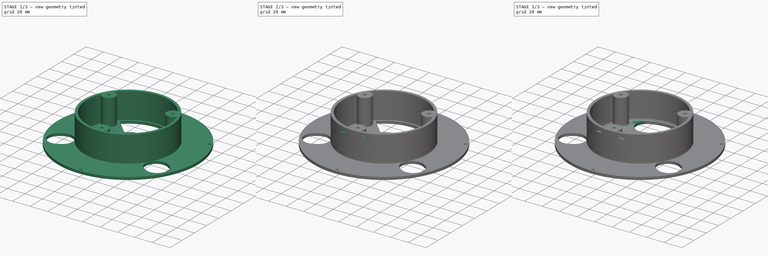
[diagram: build sequence overview — one tinted view per stage of 3, left to right]
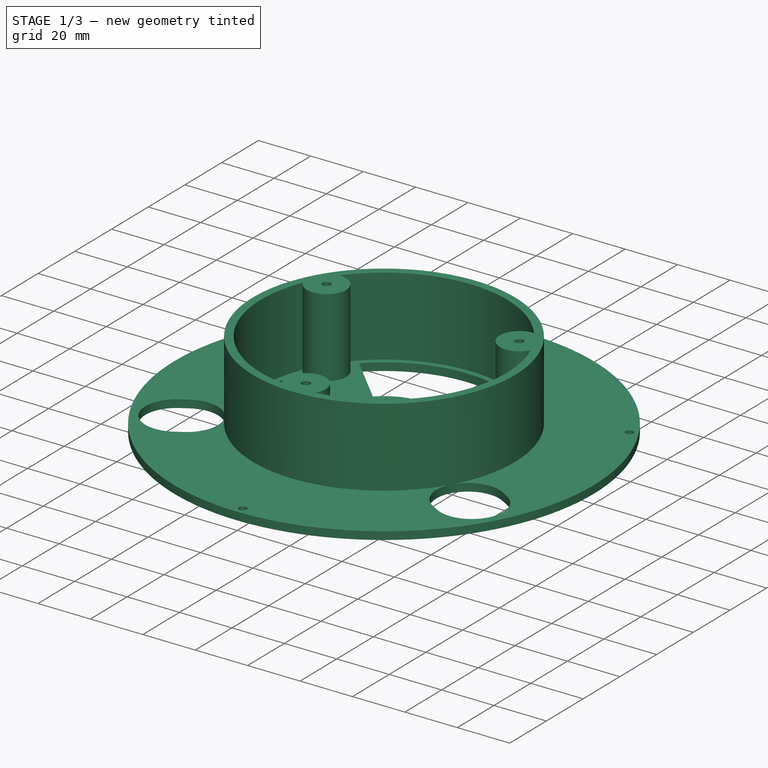
[diagram: stage 1 of 3 — iso view after this stage's code; geometry added in this stage tinted green]
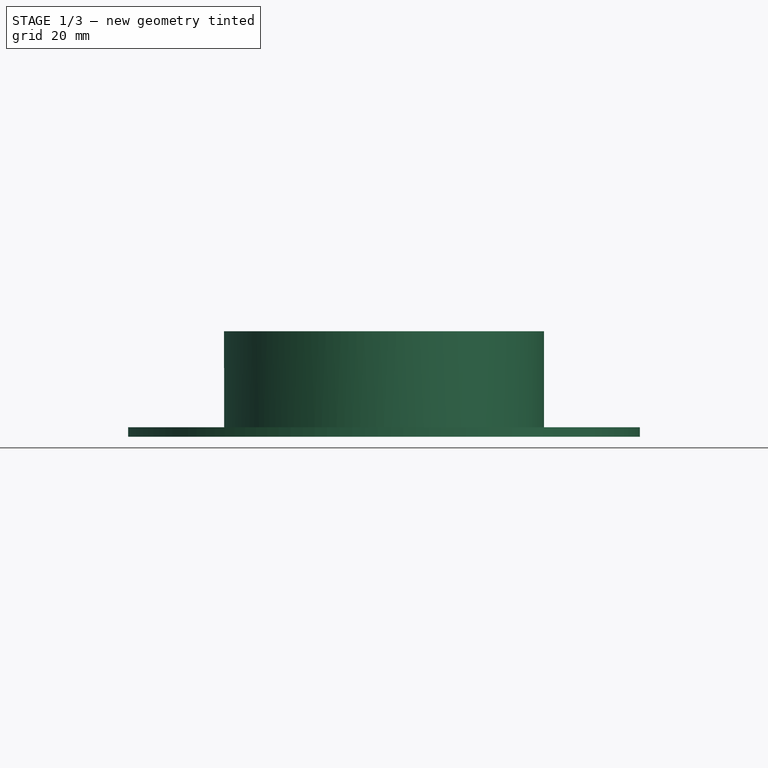
[diagram: stage 1 of 3 — front view after this stage's code; geometry added in this stage tinted green]
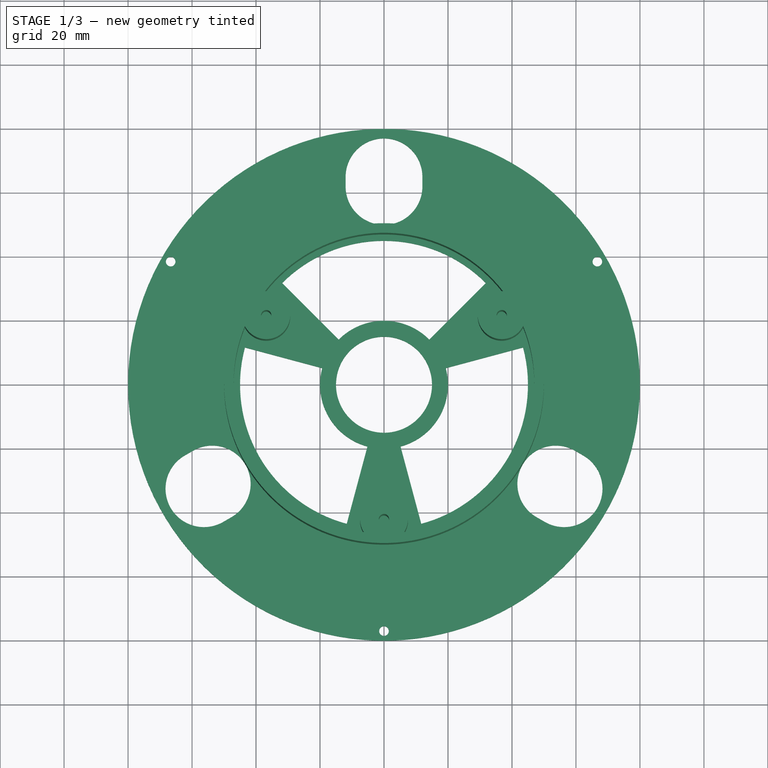
[diagram: stage 1 of 3 — top view after this stage's code; geometry added in this stage tinted green]
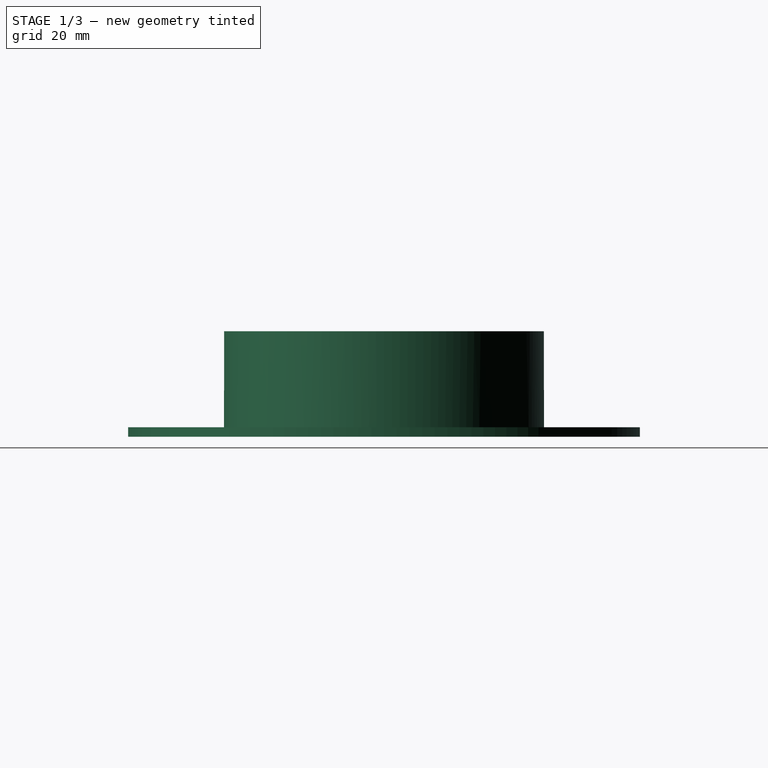
[diagram: stage 1 of 3 — right view after this stage's code; geometry added in this stage tinted green]
FCSTD DOCUMENT  (FreeCAD 0.18R15441 (Git))
Label: MiniSpoolHalf2_Thick_30MM
License: All rights reserved
LicenseURL: http://en.wikipedia.org/wiki/All_rights_reserved
objects: Sketcher::SketchObject×4, PartDesign::Pad×2, PartDesign::Pocket×2, PartDesign::Fillet×2, PartDesign::Body×1, App::Part×1
note: 15 computed .brp shape members not serialized (recipe doc carries the construction recipe); baked Part::Feature solids carry a one-line shape summary decoded from their .brp

FEATURE [Sketcher::SketchObject] Sketch001  label="SpoolCoreSketch"
  MapMode = 5
  Support = -> [XY_Plane001]
  sketch-geometry (20):
    g0: Circle CenterX=0 CenterY=0 CenterZ=0 NormalX=0 NormalY=0 NormalZ=1 AngleXU=0 Radius=50
    g1: LineSegment [constr] StartX=-40.7032 StartY=23.5 StartZ=0 EndX=-7.1e-15 EndY=-47 EndZ=0
    g2: LineSegment [constr] StartX=0 StartY=-47 StartZ=0 EndX=40.7032 EndY=23.5 EndZ=0
    g3: LineSegment [constr] StartX=40.7032 StartY=23.5 StartZ=0 EndX=-40.7032 EndY=23.5 EndZ=0
    g4: Circle [constr] CenterX=0 CenterY=0 CenterZ=0 NormalX=0 NormalY=0 NormalZ=1 AngleXU=0 Radius=47
    g5: LineSegment [constr] StartX=0 StartY=0 StartZ=0 EndX=-40.7032 EndY=23.5 EndZ=0
    g6: LineSegment [constr] StartX=0 StartY=0 StartZ=0 EndX=40.7032 EndY=23.5 EndZ=0
    g7: LineSegment [constr] StartX=0 StartY=0 StartZ=0 EndX=0 EndY=-47 EndZ=0
    g8: Circle [constr] CenterX=-36.8061 CenterY=21.25 CenterZ=0 NormalX=0 NormalY=0 NormalZ=1 AngleXU=0 Radius=7.5
    g9: Circle [constr] CenterX=36.8061 CenterY=21.25 CenterZ=0 NormalX=0 NormalY=0 NormalZ=1 AngleXU=0 Radius=7.5
    g10: Circle [constr] CenterX=0 CenterY=-42.5 CenterZ=0 NormalX=0 NormalY=0 NormalZ=1 AngleXU=0 Radius=7.5
    g11: ArcOfCircle CenterX=0 CenterY=0 CenterZ=0 NormalX=0 NormalY=0 NormalZ=1 AngleXU=0 Radius=47 StartAngle=2.75234 EndAngle=4.57804
    g12: ArcOfCircle CenterX=0 CenterY=0 CenterZ=0 NormalX=0 NormalY=0 NormalZ=1 AngleXU=0 Radius=47 StartAngle=4.84674 EndAngle=6.67244
    g13: ArcOfCircle CenterX=0 CenterY=0 CenterZ=0 NormalX=0 NormalY=0 NormalZ=1 AngleXU=0 Radius=47 StartAngle=0.657948 EndAngle=2.48364
    g14: ArcOfCircle CenterX=-36.8061 CenterY=21.25 CenterZ=0 NormalX=0 NormalY=0 NormalZ=1 AngleXU=0 Radius=7.5 StartAngle=3.61415 EndAngle=7.90502
    g15: ArcOfCircle CenterX=36.8061 CenterY=21.25 CenterZ=0 NormalX=0 NormalY=0 NormalZ=1 AngleXU=0 Radius=7.5 StartAngle=1.51976 EndAngle=5.81062
    g16: ArcOfCircle CenterX=0 CenterY=-42.5 CenterZ=0 NormalX=0 NormalY=0 NormalZ=1 AngleXU=0 Radius=7.5 StartAngle=5.70855 EndAngle=9.99941
    g17: Circle CenterX=-36.8061 CenterY=21.25 CenterZ=0 NormalX=0 NormalY=0 NormalZ=1 AngleXU=0 Radius=1.6
    g18: Circle CenterX=36.8061 CenterY=21.25 CenterZ=0 NormalX=0 NormalY=0 NormalZ=1 AngleXU=0 Radius=1.6
    g19: Circle CenterX=0 CenterY=-42.5 CenterZ=0 NormalX=0 NormalY=0 NormalZ=1 AngleXU=0 Radius=1.6
  constraints (52):
    c: Coincident(g0,g-1)
    c: Radius(g0) = 50
    c: Coincident(g1,g2)
    c: Coincident(g2,g3)
    c: Coincident(g3,g1)
    c: Equal(g1,g2)
    c: Equal(g1,g3)
    c: PointOnObject(g1,g4)
    c: PointOnObject(g2,g4)
    c: PointOnObject(g3,g4)
    c: Coincident(g4,g0)
    c: PointOnObject(g1,g-2)
    c: Radius(g4) = 47
    c: Coincident(g5,g0)
    c: Coincident(g5,g1)
    c: Coincident(g6,g0)
    c: Coincident(g6,g2)
    c: Coincident(g7,g0)
    c: Coincident(g7,g1)
    c: PointOnObject(g8,g5)
    c: PointOnObject(g9,g6)
    c: PointOnObject(g10,g7)
    c: Equal(g8,g9)
    c: Equal(g9,g10)
    c: Tangent(g8,g0)
    c: Tangent(g9,g0)
    c: Tangent(g10,g0)
    c: Radius(g8) = 7.5
    c: Coincident(g11,g0)
    c: PointOnObject(g11,g8)
    c: PointOnObject(g11,g10)
    c: Coincident(g12,g0)
    c: PointOnObject(g12,g9)
    c: Coincident(g13,g0)
    c: Coincident(g14,g8)
    c: Coincident(g14,g11)
    c: Coincident(g14,g13)
    c: Coincident(g15,g9)
    c: Coincident(g15,g13)
    c: Coincident(g15,g12)
    c: Equal(g13,g4)
    c: Coincident(g16,g10)
    c: Coincident(g16,g11)
    c: Coincident(g16,g12)
    c: Equal(g12,g4)
    c: Equal(g11,g4)
    c: Coincident(g17,g14)
    c: Coincident(g18,g15)
    c: Coincident(g19,g16)
    c: Equal(g17,g18)
    c: Equal(g18,g19)
    c: Radius(g17) = 1.6
FEATURE [Sketcher::SketchObject] Sketch  label="BaseSketch"
  ExternalGeometry = -> [Sketch001]
  MapMode = 5
  Support = -> [XY_Plane001]
  sketch-geometry (43):
    g0: Circle CenterX=0 CenterY=0 CenterZ=0 NormalX=0 NormalY=0 NormalZ=1 AngleXU=0 Radius=80
    g1: Circle CenterX=0 CenterY=0 CenterZ=0 NormalX=0 NormalY=0 NormalZ=1 AngleXU=0 Radius=15
    g2: LineSegment [constr] StartX=0 StartY=80 StartZ=0 EndX=-69.282 EndY=-40 EndZ=0
    g3: LineSegment [constr] StartX=-69.282 StartY=-40 StartZ=0 EndX=69.282 EndY=-40 EndZ=0
    g4: LineSegment [constr] StartX=69.282 StartY=-40 StartZ=0 EndX=0 EndY=80 EndZ=0
    g5: LineSegment [constr] StartX=0 StartY=0 StartZ=0 EndX=-69.282 EndY=-40 EndZ=0
    g6: LineSegment [constr] StartX=0 StartY=0 StartZ=0 EndX=0 EndY=80 EndZ=0
    g7: LineSegment [constr] StartX=0 StartY=0 StartZ=0 EndX=69.282 EndY=-40 EndZ=0
    g8: ArcOfCircle CenterX=0 CenterY=62 CenterZ=0 NormalX=0 NormalY=0 NormalZ=1 AngleXU=0 Radius=12 StartAngle=3.14159 EndAngle=6.28319
    g9: ArcOfCircle CenterX=0 CenterY=65 CenterZ=0 NormalX=0 NormalY=0 NormalZ=1 AngleXU=0 Radius=12 StartAngle=0 EndAngle=3.14159
    g10: LineSegment StartX=12 StartY=62 StartZ=0 EndX=12 EndY=65 EndZ=0
    g11: LineSegment StartX=-12 StartY=62 StartZ=0 EndX=-12 EndY=65 EndZ=0
    g12: ArcOfCircle CenterX=-53.6936 CenterY=-31 CenterZ=0 NormalX=0 NormalY=0 NormalZ=1 AngleXU=0 Radius=12 StartAngle=5.23599 EndAngle=8.37758
    g13: ArcOfCircle CenterX=-56.2917 CenterY=-32.5 CenterZ=0 NormalX=0 NormalY=0 NormalZ=1 AngleXU=0 Radius=12 StartAngle=2.0944 EndAngle=5.23599
    g14: LineSegment StartX=-59.6936 StartY=-20.6077 StartZ=0 EndX=-62.2917 EndY=-22.1077 EndZ=0
    g15: LineSegment StartX=-47.6936 StartY=-41.3923 StartZ=0 EndX=-50.2917 EndY=-42.8923 EndZ=0
    g16: ArcOfCircle CenterX=53.6936 CenterY=-31 CenterZ=0 NormalX=0 NormalY=0 NormalZ=1 AngleXU=0 Radius=12 StartAngle=1.0472 EndAngle=4.18879
    g17: ArcOfCircle CenterX=56.2917 CenterY=-32.5 CenterZ=0 NormalX=0 NormalY=0 NormalZ=1 AngleXU=0 Radius=12 StartAngle=4.18879 EndAngle=7.33038
    g18: LineSegment StartX=47.6936 StartY=-41.3923 StartZ=0 EndX=50.2917 EndY=-42.8923 EndZ=0
    g19: LineSegment StartX=59.6936 StartY=-20.6077 StartZ=0 EndX=62.2917 EndY=-22.1077 EndZ=0
    g20: LineSegment [constr] StartX=0 StartY=0 StartZ=0 EndX=-69.282 EndY=40 EndZ=0
    g21: LineSegment [constr] StartX=0 StartY=0 StartZ=0 EndX=69.282 EndY=40 EndZ=0
    g22: LineSegment [constr] StartX=0 StartY=0 StartZ=0 EndX=0 EndY=-80 EndZ=0
    g23: Circle CenterX=-66.684 CenterY=38.5 CenterZ=0 NormalX=0 NormalY=0 NormalZ=1 AngleXU=0 Radius=1.5
    g24: Circle CenterX=66.684 CenterY=38.5 CenterZ=0 NormalX=0 NormalY=0 NormalZ=1 AngleXU=0 Radius=1.5
    g25: Circle CenterX=0 CenterY=-77 CenterZ=0 NormalX=0 NormalY=0 NormalZ=1 AngleXU=0 Radius=1.5
    g26: Circle [constr] CenterX=0 CenterY=0 CenterZ=0 NormalX=0 NormalY=0 NormalZ=1 AngleXU=0 Radius=45
    g27: Circle [constr] CenterX=0 CenterY=0 CenterZ=0 NormalX=0 NormalY=0 NormalZ=1 AngleXU=0 Radius=20
    g28: ArcOfCircle CenterX=0 CenterY=0 CenterZ=0 NormalX=0 NormalY=0 NormalZ=1 AngleXU=0 Radius=45 StartAngle=0.785398 EndAngle=2.35619
    g29: ArcOfCircle CenterX=0 CenterY=0 CenterZ=0 NormalX=0 NormalY=0 NormalZ=1 AngleXU=0 Radius=20 StartAngle=0.785398 EndAngle=2.35619
    g30: ArcOfCircle CenterX=0 CenterY=0 CenterZ=0 NormalX=0 NormalY=0 NormalZ=1 AngleXU=0 Radius=20 StartAngle=4.97419 EndAngle=6.54498
    g31: ArcOfCircle CenterX=0 CenterY=0 CenterZ=0 NormalX=0 NormalY=0 NormalZ=1 AngleXU=0 Radius=45 StartAngle=4.97419 EndAngle=6.54498
    g32: ArcOfCircle CenterX=0 CenterY=0 CenterZ=0 NormalX=0 NormalY=0 NormalZ=1 AngleXU=0 Radius=45 StartAngle=2.87979 EndAngle=4.45059
    g33: ArcOfCircle CenterX=0 CenterY=0 CenterZ=0 NormalX=0 NormalY=0 NormalZ=1 AngleXU=0 Radius=20 StartAngle=2.87979 EndAngle=4.45059
    g34: LineSegment StartX=-19.3185 StartY=5.17638 StartZ=0 EndX=-43.4667 EndY=11.6469 EndZ=0
    g35: LineSegment StartX=-14.1421 StartY=14.1421 StartZ=0 EndX=-31.8198 EndY=31.8198 EndZ=0
    g36: LineSegment StartX=14.1421 StartY=14.1421 StartZ=0 EndX=31.8198 EndY=31.8198 EndZ=0
    g37: LineSegment StartX=19.3185 StartY=5.17638 StartZ=0 EndX=43.4667 EndY=11.6469 EndZ=0
    g38: LineSegment StartX=5.17638 StartY=-19.3185 StartZ=0 EndX=11.6469 EndY=-43.4667 EndZ=0
    g39: LineSegment StartX=-5.17638 StartY=-19.3185 StartZ=0 EndX=-11.6469 EndY=-43.4667 EndZ=0
    g40: LineSegment [constr] StartX=14.1421 StartY=14.1421 StartZ=0 EndX=19.3185 EndY=5.17638 EndZ=0
    g41: LineSegment [constr] StartX=5.17638 StartY=-19.3185 StartZ=0 EndX=-5.17638 EndY=-19.3185 EndZ=0
    g42: LineSegment [constr] StartX=-19.3185 StartY=5.17638 StartZ=0 EndX=-14.1421 EndY=14.1421 EndZ=0
  constraints (111):
    c: Coincident(g0,g-1)
    c: Coincident(g1,g0)
    c: Radius(g0) = 80
    c: Radius(g1) = 15
    c: PointOnObject(g2,g0)
    c: PointOnObject(g2,g0)
    c: Coincident(g3,g2)
    c: PointOnObject(g3,g0)
    c: Coincident(g4,g3)
    c: Coincident(g4,g2)
    c: Equal(g2,g4)
    c: Equal(g4,g3)
    c: Horizontal(g3)
    c: Coincident(g5,g0)
    c: Coincident(g5,g2)
    c: Coincident(g6,g0)
    c: Coincident(g6,g2)
    c: Coincident(g7,g0)
    c: Coincident(g7,g3)
    c: Tangent(g8,g11) = 1.5708
    c: Tangent(g8,g10) = -1.5708
    c: Tangent(g10,g9) = -1.5708
    c: Tangent(g11,g9) = 1.5708
    c: Equal(g8,g9)
    c: PointOnObject(g8,g6)
    c: Tangent(g12,g15) = 1.5708
    c: Tangent(g12,g14) = -1.5708
    c: Tangent(g14,g13) = -1.5708
    c: Tangent(g15,g13) = 1.5708
    c: Equal(g12,g13)
    c: PointOnObject(g12,g5)
    c: PointOnObject(g13,g5)
    c: PointOnObject(g9,g6)
    c: Tangent(g16,g19) = 1.5708
    c: Tangent(g16,g18) = -1.5708
    c: Tangent(g18,g17) = -1.5708
    c: Tangent(g19,g17) = 1.5708
    c: Equal(g16,g17)
    c: PointOnObject(g16,g7)
    c: PointOnObject(g17,g7)
    c: Equal(g14,g11)
    c: Equal(g11,g19)
    c: Equal(g8,g16)
    c: Equal(g16,g12)
    c: Distance(g13,g2) = 15
    c: Distance(g9,g2) = 15
    c: Distance(g3,g17) = 15
    c: Coincident(g20,g0)
    c: PointOnObject(g20,g0)
    c: Parallel(g20,g7)
    c: Coincident(g21,g0)
    c: PointOnObject(g21,g0)
    c: Coincident(g22,g0)
    c: PointOnObject(g22,g0)
    c: Parallel(g5,g21)
    c: Parallel(g22,g6)
    c: PointOnObject(g23,g20)
    c: PointOnObject(g24,g21)
    c: PointOnObject(g25,g22)
    c: Distance(g25,g22) = 3
    c: Radius(g25) = 1.5
    c: Equal(g25,g23)
    c: Equal(g23,g24)
    c: Distance(g23,g20) = 3
    c: Distance(g24,g21) = 3
    c: Tangent(g12,g-3)
    c: Radius(g13) = 12
    c: Coincident(g26,g0)
    c: Coincident(g27,g0)
    c: Coincident(g28,g0)
    c: PointOnObject(g28,g26)
    c: Coincident(g29,g0)
    c: Coincident(g30,g0)
    c: PointOnObject(g30,g27)
    c: Coincident(g31,g0)
    c: PointOnObject(g31,g26)
    c: Coincident(g32,g0)
    c: PointOnObject(g32,g26)
    c: Coincident(g33,g0)
    c: Coincident(g34,g33)
    c: Coincident(g34,g32)
    c: Coincident(g35,g29)
    c: Coincident(g35,g28)
    c: Coincident(g36,g29)
    c: Coincident(g36,g28)
    c: Coincident(g37,g30)
    c: Coincident(g37,g31)
    c: Coincident(g38,g30)
    c: Coincident(g38,g31)
    c: Coincident(g39,g33)
    c: Coincident(g39,g32)
    c: Perpendicular(g33,g39)
    c: Perpendicular(g33,g34)
    c: Perpendicular(g29,g35)
    c: Perpendicular(g29,g36)
    c: Perpendicular(g30,g37)
    c: Perpendicular(g30,g38)
    c: Symmetric(g33,g30,g22)
    c: Symmetric(g33,g29,g20)
    c: Symmetric(g29,g30,g21)
    c: Coincident(g40,g29)
    c: Coincident(g40,g30)
    c: Coincident(g41,g30)
    c: Coincident(g41,g33)
    c: Coincident(g42,g33)
    c: Coincident(g42,g29)
    c: Equal(g41,g40)
    c: Equal(g40,g42)
    c: Radius(g27) = 20
    c: Radius(g26) = 45
    c: Angle(g29) = 1.5708
FEATURE [PartDesign::Pad] Pad  label="BasePad"
  Length = 3
  Length2 = 100
  Profile = -> Sketch
  Reversed = true
  Type = 0
FEATURE [PartDesign::Pad] Pad001  label="SpoolCorePad"
  BaseFeature = -> Pad
  Length = 30
  Length2 = 100
  Profile = -> Sketch001
  Type = 0
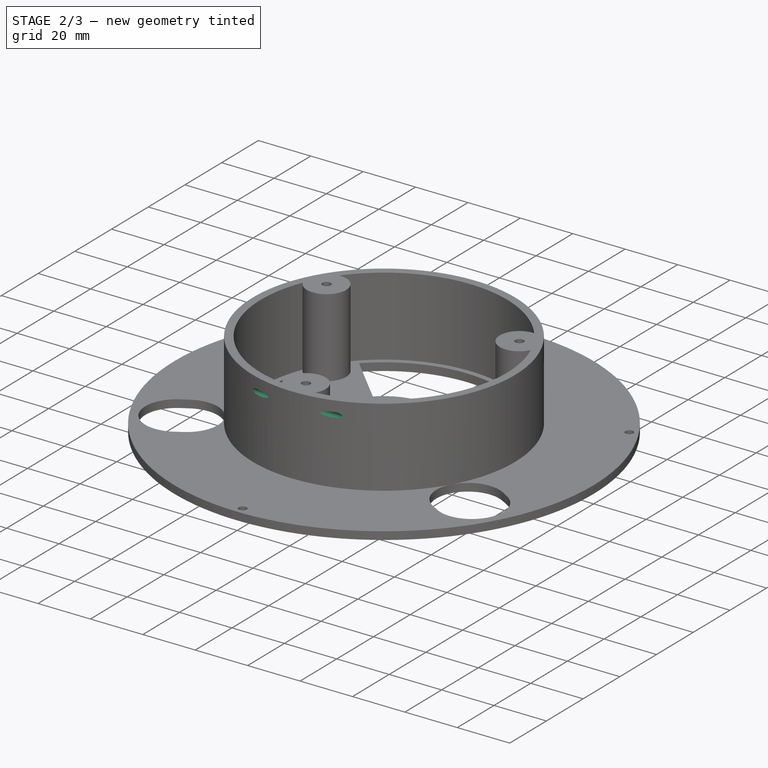
[diagram: stage 2 of 3 — iso view after this stage's code; geometry added in this stage tinted green]
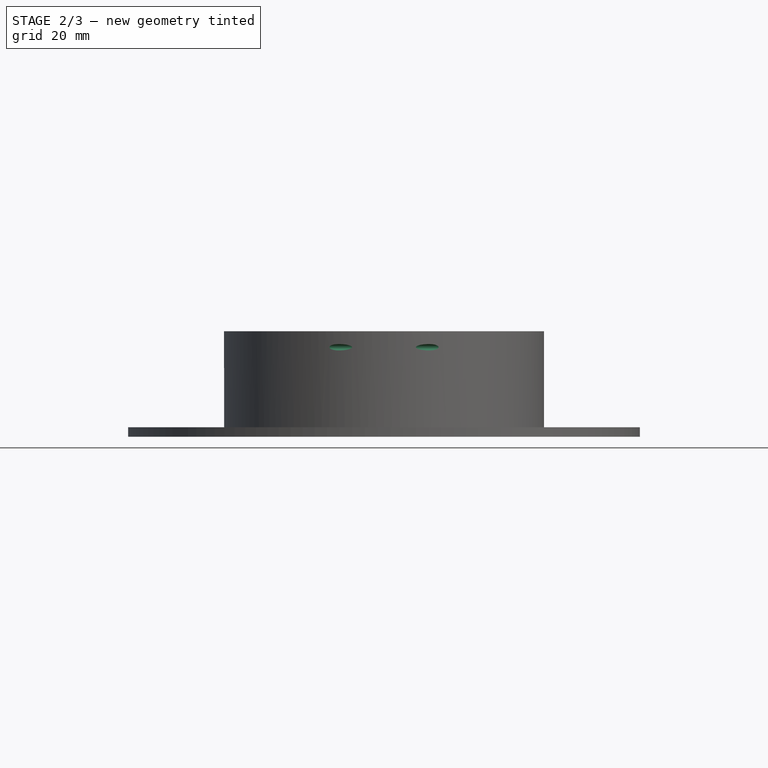
[diagram: stage 2 of 3 — front view after this stage's code; geometry added in this stage tinted green]
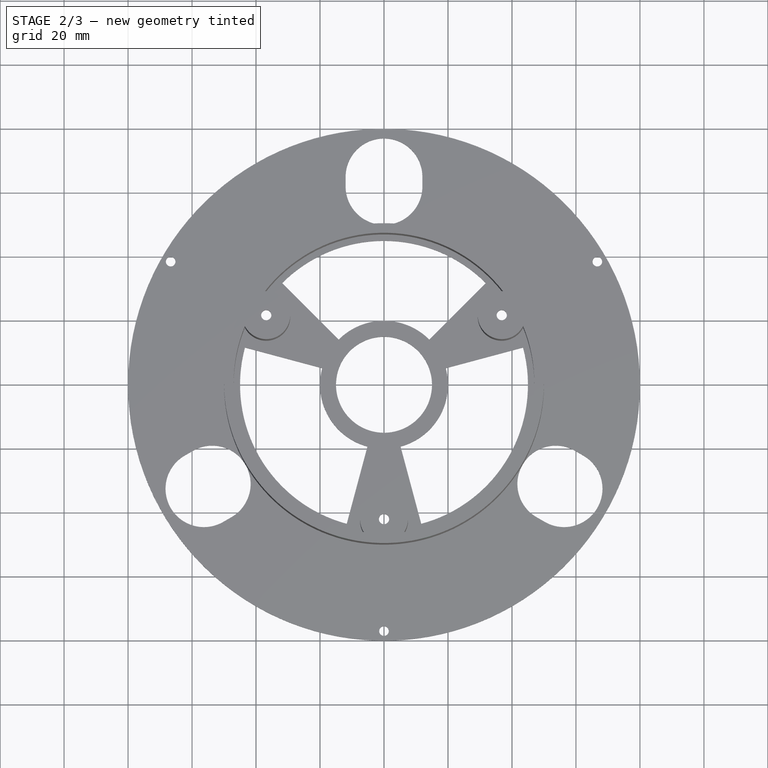
[diagram: stage 2 of 3 — top view after this stage's code; geometry added in this stage tinted green]
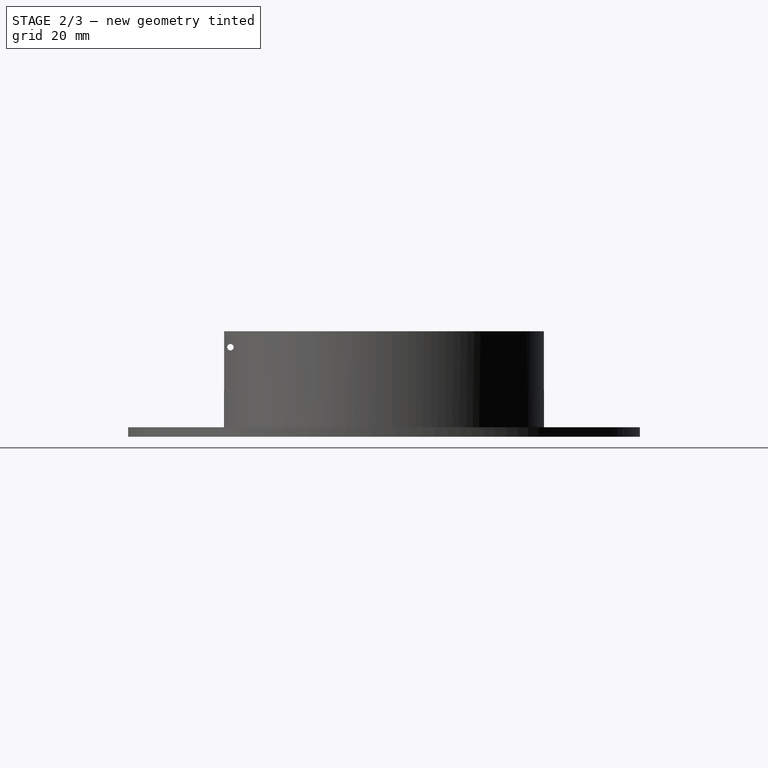
[diagram: stage 2 of 3 — right view after this stage's code; geometry added in this stage tinted green]
FEATURE [Sketcher::SketchObject] Sketch005  label="FilamentClipSketch"
  MapMode = 5
  Placement = pos=(0,0,0) rot=(0.57735,0.57735,0.57735;2.0944rad)
  Support = -> [YZ_Plane001]
  sketch-geometry (1):
    g0: Circle CenterX=-48 CenterY=25 CenterZ=0 NormalX=0 NormalY=0 NormalZ=1 AngleXU=0 Radius=1
  constraints (3):
    c: Radius(g0) = 1
    c: DistanceX(g-2,g0) = -48
    c: Distance(g0,g-1) = 25
FEATURE [Sketcher::SketchObject] Sketch006  label="ScrewTopCutSketch"
  ExternalGeometry = -> [Sketch001]
  MapMode = 5
  Support = -> [XY_Plane001]
  sketch-geometry (21):
    g0: LineSegment StartX=-33.9311 StartY=19.5901 StartZ=0 EndX=-33.9311 EndY=22.9099 EndZ=0
    g1: LineSegment StartX=-33.9311 StartY=22.9099 StartZ=0 EndX=-36.8061 EndY=24.5698 EndZ=0
    g2: LineSegment StartX=-36.8061 StartY=24.5698 StartZ=0 EndX=-39.6811 EndY=22.9099 EndZ=0
    g3: LineSegment StartX=-39.6811 StartY=22.9099 StartZ=0 EndX=-39.6811 EndY=19.5901 EndZ=0
    g4: LineSegment StartX=-39.6811 StartY=19.5901 StartZ=0 EndX=-36.8061 EndY=17.9302 EndZ=0
    g5: LineSegment StartX=-36.8061 StartY=17.9302 StartZ=0 EndX=-33.9311 EndY=19.5901 EndZ=0
    g6: Circle [constr] CenterX=-36.8061 CenterY=21.25 CenterZ=0 NormalX=0 NormalY=0 NormalZ=1 AngleXU=0 Radius=3.31976
    g7: LineSegment StartX=39.6811 StartY=19.5901 StartZ=0 EndX=39.6811 EndY=22.9099 EndZ=0
    g8: LineSegment StartX=39.6811 StartY=22.9099 StartZ=0 EndX=36.8061 EndY=24.5698 EndZ=0
    g9: LineSegment StartX=36.8061 StartY=24.5698 StartZ=0 EndX=33.9311 EndY=22.9099 EndZ=0
    g10: LineSegment StartX=33.9311 StartY=22.9099 StartZ=0 EndX=33.9311 EndY=19.5901 EndZ=0
    g11: LineSegment StartX=33.9311 StartY=19.5901 StartZ=0 EndX=36.8061 EndY=17.9302 EndZ=0
    g12: LineSegment StartX=36.8061 StartY=17.9302 StartZ=0 EndX=39.6811 EndY=19.5901 EndZ=0
    g13: Circle [constr] CenterX=36.8061 CenterY=21.25 CenterZ=0 NormalX=0 NormalY=0 NormalZ=1 AngleXU=0 Radius=3.31976
    g14: LineSegment StartX=2.875 StartY=-44.1599 StartZ=0 EndX=2.875 EndY=-40.8401 EndZ=0
    g15: LineSegment StartX=2.875 StartY=-40.8401 StartZ=0 EndX=0 EndY=-39.1802 EndZ=0
    g16: LineSegment StartX=0 StartY=-39.1802 StartZ=0 EndX=-2.875 EndY=-40.8401 EndZ=0
    g17: LineSegment StartX=-2.875 StartY=-40.8401 StartZ=0 EndX=-2.875 EndY=-44.1599 EndZ=0
    g18: LineSegment StartX=-2.875 StartY=-44.1599 StartZ=0 EndX=0 EndY=-45.8198 EndZ=0
    g19: LineSegment StartX=0 StartY=-45.8198 StartZ=0 EndX=2.875 EndY=-44.1599 EndZ=0
    g20: Circle [constr] CenterX=0 CenterY=-42.5 CenterZ=0 NormalX=0 NormalY=0 NormalZ=1 AngleXU=0 Radius=3.31976
  constraints (48):
    c: Coincident(g0,g1)
    c: Coincident(g1,g2)
    c: Coincident(g2,g3)
    c: Coincident(g3,g4)
    c: Coincident(g4,g5)
    c: Coincident(g5,g0)
    c: Equal(g0, g1-g5) x5
    c: PointOnObject(g0,g6)
    c: PointOnObject(g1,g6)
    c: PointOnObject(g2,g6)
    c: PointOnObject(g3,g6)
    c: PointOnObject(g4,g6)
    c: PointOnObject(g5,g6)
    c: Coincident(g6,g-3)
    c: Coincident(g7,g8)
    c: Coincident(g8,g9)
    c: Coincident(g9,g10)
    c: Coincident(g10,g11)
    c: Coincident(g11,g12)
    c: Coincident(g12,g7)
    c: Equal(g7, g8-g12) x5
    c: PointOnObject(g7,g13)
    c: PointOnObject(g8,g13)
    c: PointOnObject(g9,g13)
    c: PointOnObject(g10,g13)
    c: PointOnObject(g11,g13)
    c: PointOnObject(g12,g13)
    c: Coincident(g13,g-4)
    c: Coincident(g14,g15)
    c: Coincident(g15,g16)
    c: Coincident(g16,g17)
    c: Coincident(g17,g18)
    c: Coincident(g18,g19)
    c: Coincident(g19,g14)
    c: Equal(g14, g15-g19) x5
    c: PointOnObject(g14,g20)
    c: PointOnObject(g15,g20)
    c: PointOnObject(g16,g20)
    c: PointOnObject(g17,g20)
    c: PointOnObject(g18,g20)
    c: PointOnObject(g19,g20)
    c: Coincident(g20,g-5)
    c: Vertical(g0)
    c: Vertical(g10)
    c: Vertical(g17)
    c: Equal(g3,g10)
    c: Equal(g10,g17)
    c: Distance(g2,g0) = 5.75
FEATURE [PartDesign::Pocket] Pocket  label="ScrewTopCutPocket"
  BaseFeature = -> Pad001
  Length = 3
  Length2 = 25
  Profile = -> Sketch006
  Type = 4
FEATURE [PartDesign::Pocket] Pocket001  label="FilamentClipPocket"
  BaseFeature = -> Pocket
  Length = 5
  Length2 = 100
  Midplane = true
  Profile = -> Sketch005
  Type = 1
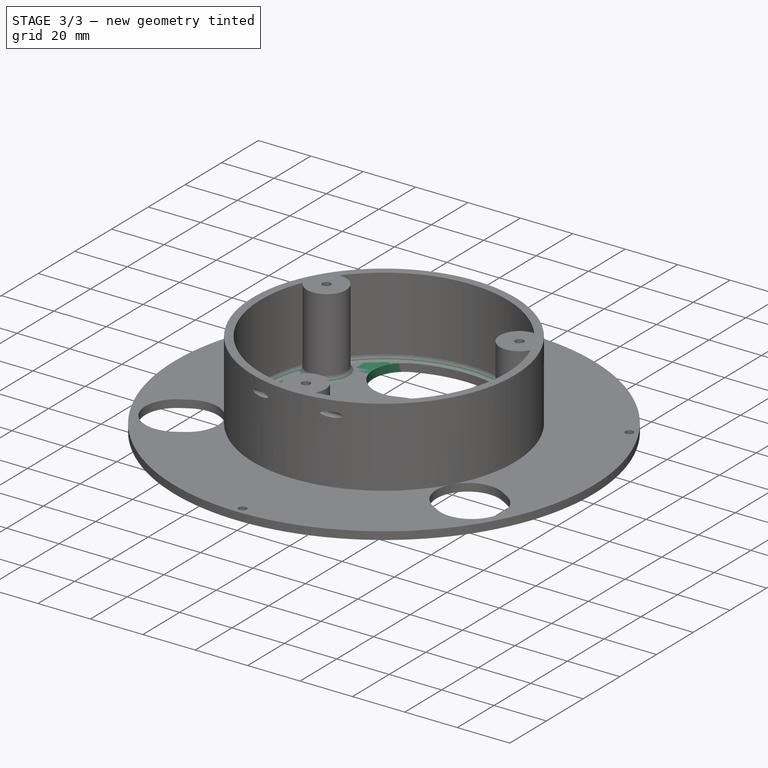
[diagram: stage 3 of 3 — iso view after this stage's code; geometry added in this stage tinted green]
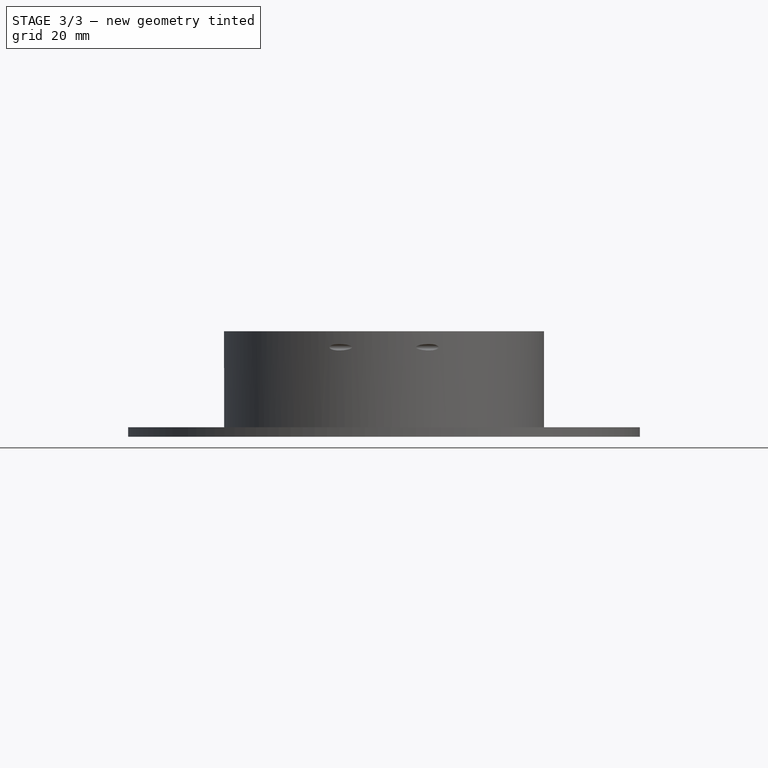
[diagram: stage 3 of 3 — front view after this stage's code; geometry added in this stage tinted green]
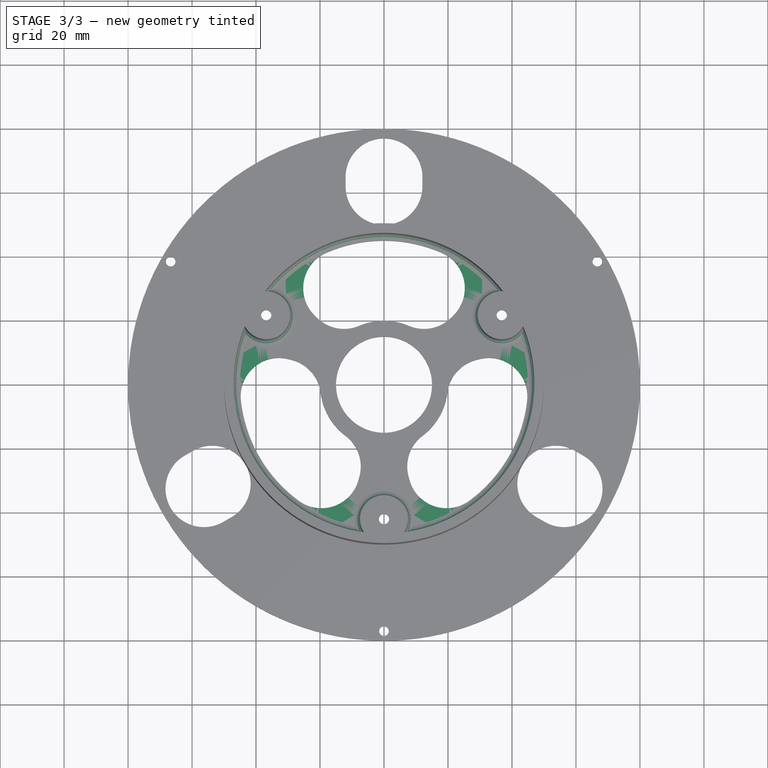
[diagram: stage 3 of 3 — top view after this stage's code; geometry added in this stage tinted green]
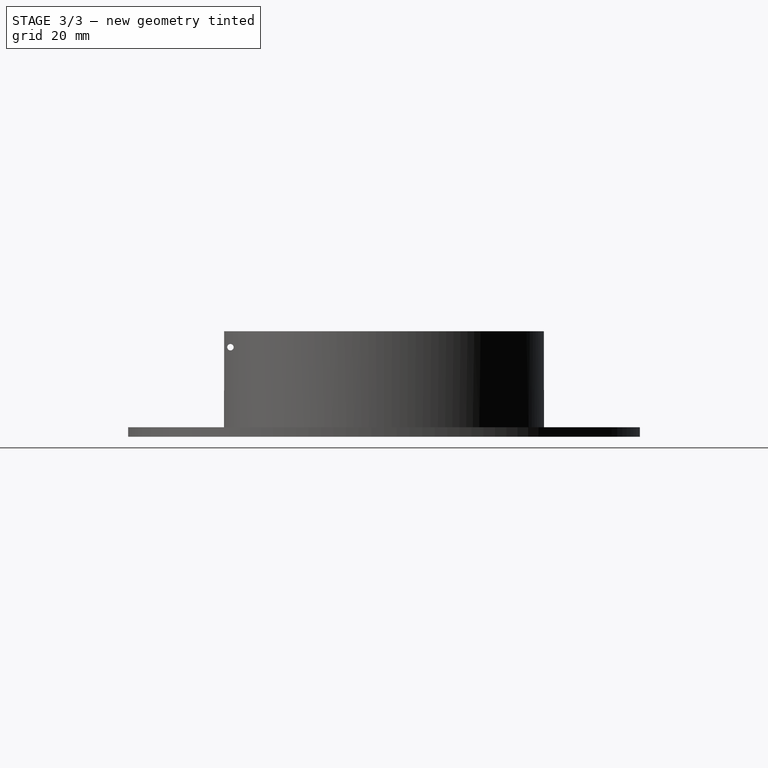
[diagram: stage 3 of 3 — right view after this stage's code; geometry added in this stage tinted green]
FEATURE [PartDesign::Fillet] Fillet  label="CenterCornersFillet"
  Base = -> Pocket001 [Edge94,Edge96,Edge91,Edge92,Edge132,Edge131,Edge134,Edge136,Edge111,Edge112,Edge116,Edge114]
  BaseFeature = -> Pocket001
  Radius = 12
FEATURE [PartDesign::Fillet] Fillet001  label="SpoolCoreFillet"
  Base = -> Fillet [Edge182,Edge184,Edge186,Edge185,Edge183,Edge181]
  BaseFeature = -> Fillet
  Radius = 1.99
FEATURE [PartDesign::Body] Body  label="SpoolHalfBody"
  Group = -> [Sketch,Pad,Sketch001,Pad001,Sketch005,Sketch006,Pocket,Pocket001,Fillet,Fillet001]
  Origin = -> Origin001
  Tip = -> Fillet001
FEATURE [App::Part] Part  label="SpoolHalfPart"
  Group = -> [Body]
  License = CC BY 3.0
  LicenseURL = http://creativecommons.org/licenses/by/3.0/
  Origin = -> Origin
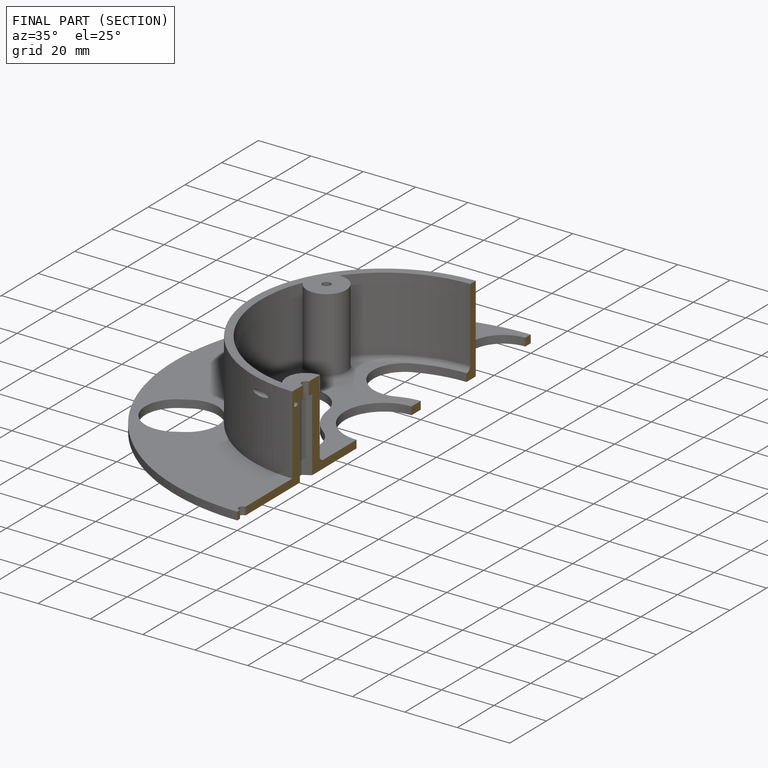
[diagram: finished part — half-section view (interior)]
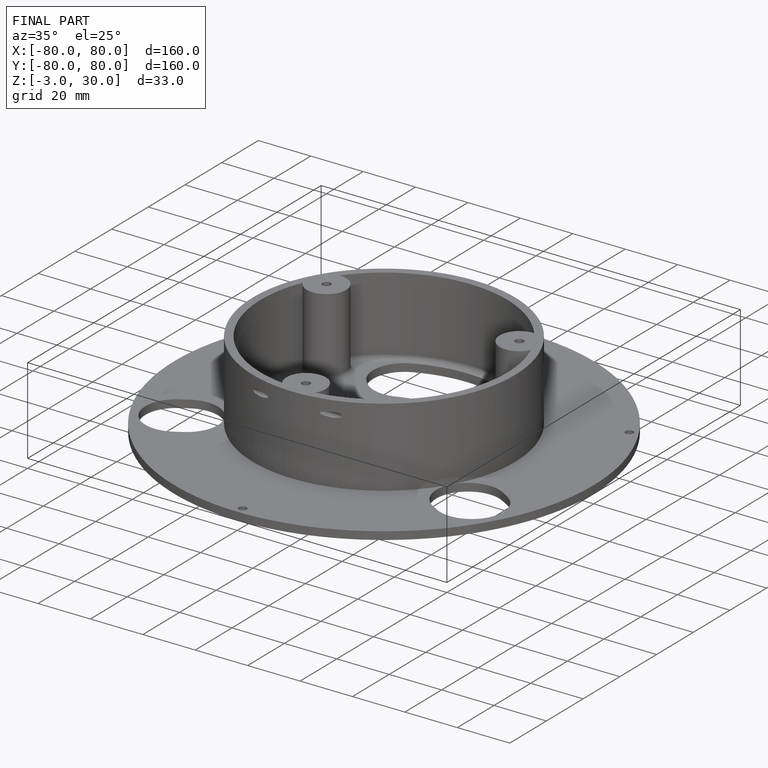
[diagram: finished part — iso view with bounding-box wireframe]
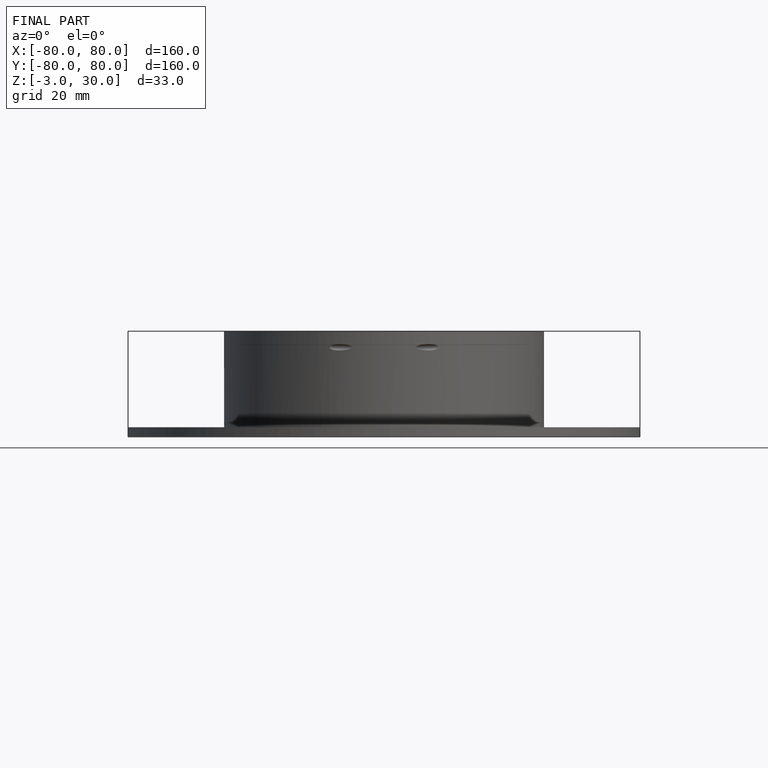
[diagram: finished part — front view with bounding-box wireframe]
